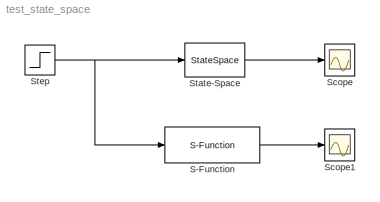
MODEL test_state_space
KIND model
BLOCK [S-Function] S-Function
  EnableBusSupport = off
  FunctionName = sfun_state_space
  Parameters = [ -0.09  -0.01 ;  1   ,  0   ]  [  1    -7  ;   0   , -2   ] [  0    2  ;  1   , -5   ] [ -3   0   ;   1   , 0     ]
  Ports = [1, 1]
  SID = 1
BLOCK [Scope] Scope
  DataFormat = StructureWithTime
  Floating = off
  NumInputPorts = 1
  Ports = [1]
  SID = 2
  SampleTime = 0
  ZoomMode = yonly
BLOCK [Scope] Scope1
  DataFormat = StructureWithTime
  Floating = off
  NumInputPorts = 1
  Ports = [1]
  SID = 3
  SampleTime = 0
  SaveName = ScopeData1
BLOCK [StateSpace] State-Space
  A = [ -0.09  -0.01 ;  1   ,  0   ]
  B = [  1    -7  ;   0   , -2   ]
  C = [  0    2  ;  1   , -5   ]
  D = [ -3   0   ;   1   , 0     ]
  SID = 4
BLOCK [Step] Step
  After = [1 1]
  Before = [0 0]
  SID = 5
  SampleTime = 0
  Time = 0.1
LINE S-Function:1 -> Scope1:1
LINE State-Space:1 -> Scope:1
NET Step:1 -> S-Function:1, State-Space:1
note: NET lines group one-source signal fan-out (src -> all destinations, sorted); 1:1 wires keep LINE
